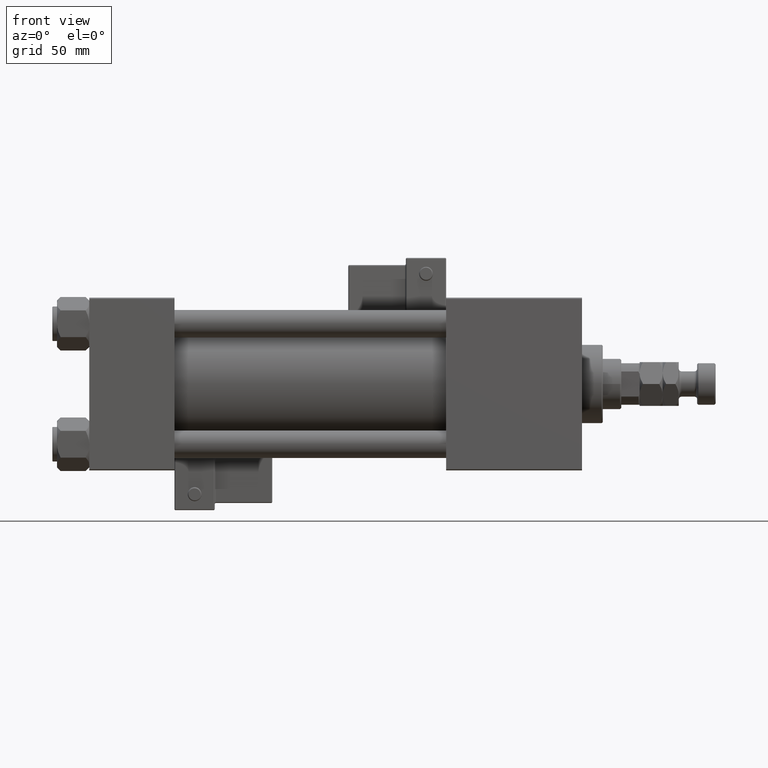
[diagram: clean part render]
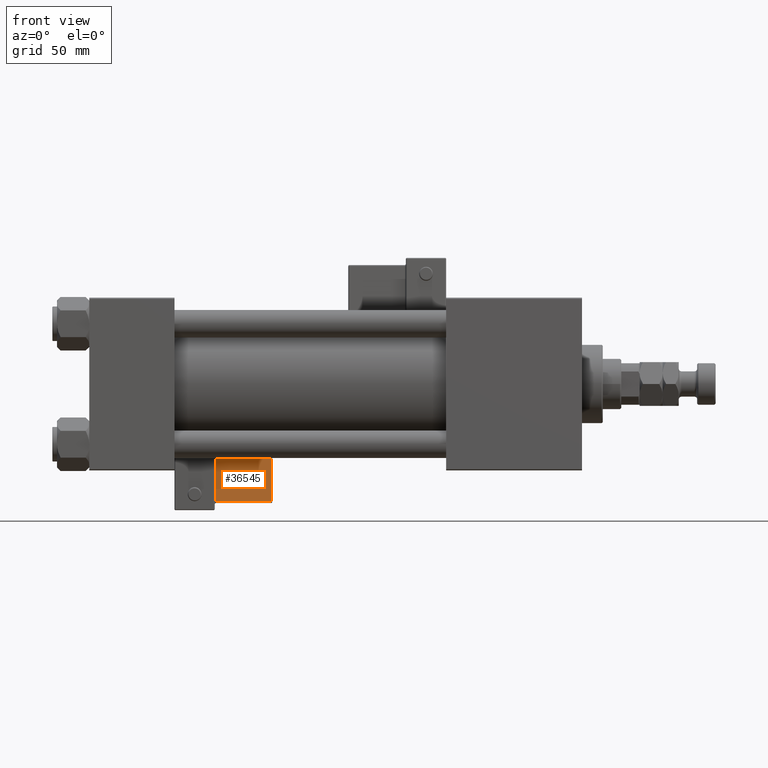
[diagram: same view with one face highlighted and labeled with its STEP entity id]
A machine part, front view. The second image highlights one B-rep face of the part: STEP entity #36545.
In plain terms, the highlighted planar face has unit normal (0, 0.9994, 0.0353).
Its self-contained STEP definition (entity closure, byte-faithful):
#125 = EDGE_LOOP ( 'NONE', ( #53120, #6836, #20490, #7491 ) ) ;
#298 = EDGE_CURVE ( 'NONE', #28077, #37639, #29266, .T. ) ;
#2094 = CARTESIAN_POINT ( 'NONE',  ( 33.24999999999999289, -36.25000000000000000, 22.00000000000000355 ) ) ;
#2408 = PLANE ( 'NONE',  #11117 ) ;
#4053 = CARTESIAN_POINT ( 'NONE',  ( 9.250000000000003553, -36.25000000000000000, 21.50000000000000000 ) ) ;
#5536 = VERTEX_POINT ( 'NONE', #8292 ) ;
#6836 = ORIENTED_EDGE ( 'NONE', *, *, #47345, .T. ) ;
#7491 = ORIENTED_EDGE ( 'NONE', *, *, #298, .T. ) ;
#8143 = DIRECTION ( 'NONE',  ( -1.000000000000000000, 0.000000000000000000, -1.334402673828313339E-16 ) ) ;
#8292 = CARTESIAN_POINT ( 'NONE',  ( 33.24999999999999289, -36.25000000000000000, 2.500000000000008438 ) ) ;
#9557 = CARTESIAN_POINT ( 'NONE',  ( 9.250000000000005329, -36.25000000000000000, 2.500000000000004885 ) ) ;
#10487 = EDGE_CURVE ( 'NONE', #5536, #28077, #19657, .T. ) ;
#11117 = AXIS2_PLACEMENT_3D ( 'NONE', #44645, #47930, #19174 ) ;
#11579 = VECTOR ( 'NONE', #40198, 1000.000000000000000 ) ;
#18093 = VECTOR ( 'NONE', #25313, 1000.000000000000000 ) ;
#19174 = DIRECTION ( 'NONE',  ( 0.000000000000000000, -0.000000000000000000, 1.000000000000000000 ) ) ;
#19657 = LINE ( 'NONE', #2094, #11579 ) ;
#20490 = ORIENTED_EDGE ( 'NONE', *, *, #10487, .T. ) ;
#20899 = VECTOR ( 'NONE', #24133, 1000.000000000000000 ) ;
#20953 = LINE ( 'NONE', #37653, #18093 ) ;
#24133 = DIRECTION ( 'NONE',  ( 1.334402673828313339E-16, 0.000000000000000000, -1.000000000000000000 ) ) ;
#25222 = CARTESIAN_POINT ( 'NONE',  ( 33.24999999999999289, -36.25000000000000000, 21.50000000000000000 ) ) ;
#25313 = DIRECTION ( 'NONE',  ( 1.000000000000000000, -0.000000000000000000, 1.334402673828313339E-16 ) ) ;
#28077 = VERTEX_POINT ( 'NONE', #25222 ) ;
#29266 = LINE ( 'NONE', #53637, #31468 ) ;
#31468 = VECTOR ( 'NONE', #8143, 1000.000000000000000 ) ;
#31997 = VERTEX_POINT ( 'NONE', #9557 ) ;
#32039 = FACE_OUTER_BOUND ( 'NONE', #125, .T. ) ;
#33171 = LINE ( 'NONE', #53710, #20899 ) ;
#36545 = ADVANCED_FACE ( 'NONE', ( #32039 ), #2408, .F. ) ;
#37639 = VERTEX_POINT ( 'NONE', #4053 ) ;
#37653 = CARTESIAN_POINT ( 'NONE',  ( 33.75000000000000000, -36.25000000000000000, 2.500000000000009326 ) ) ;
#40198 = DIRECTION ( 'NONE',  ( -1.734723475976807587E-16, -0.000000000000000000, 1.000000000000000000 ) ) ;
#42341 = EDGE_CURVE ( 'NONE', #37639, #31997, #33171, .T. ) ;
#44645 = CARTESIAN_POINT ( 'NONE',  ( 33.75000000000000000, -36.25000000000000000, 22.00000000000000355 ) ) ;
#47345 = EDGE_CURVE ( 'NONE', #31997, #5536, #20953, .T. ) ;
#47930 = DIRECTION ( 'NONE',  ( -0.000000000000000000, 1.000000000000000000, 0.000000000000000000 ) ) ;
#53120 = ORIENTED_EDGE ( 'NONE', *, *, #42341, .T. ) ;
#53637 = CARTESIAN_POINT ( 'NONE',  ( 33.75000000000000000, -36.25000000000000000, 21.50000000000000000 ) ) ;
#53710 = CARTESIAN_POINT ( 'NONE',  ( 9.250000000000005329, -36.25000000000000000, 2.000000000000005329 ) ) ;